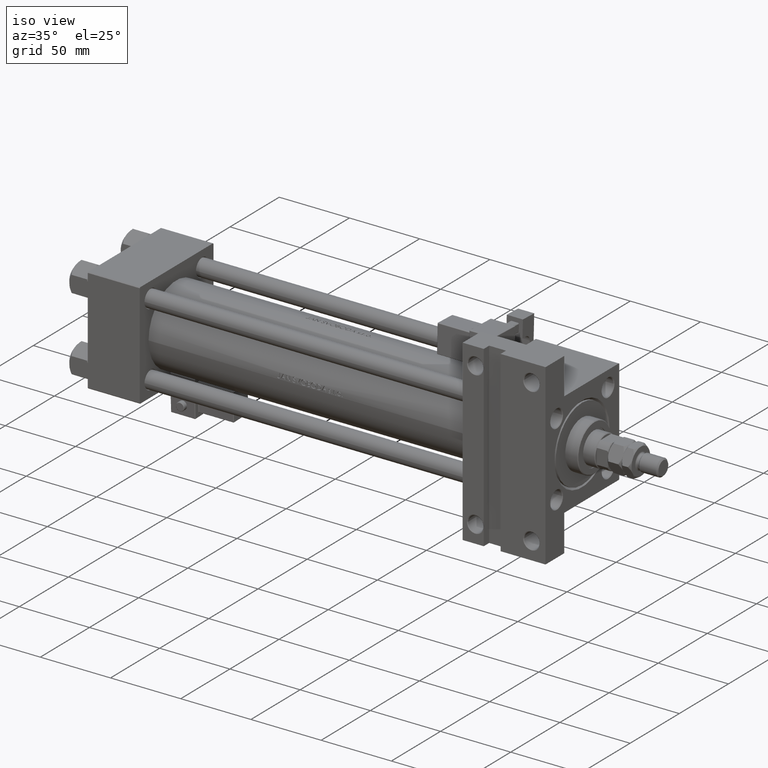
[diagram: clean part render]
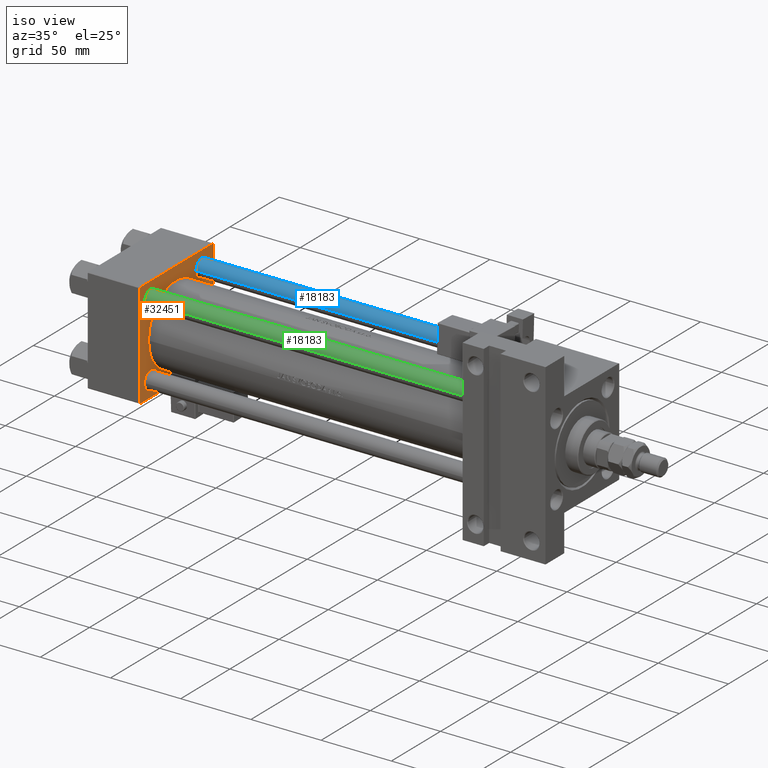
[diagram: same view with three faces highlighted in distinct colors, each labeled with its STEP entity id]
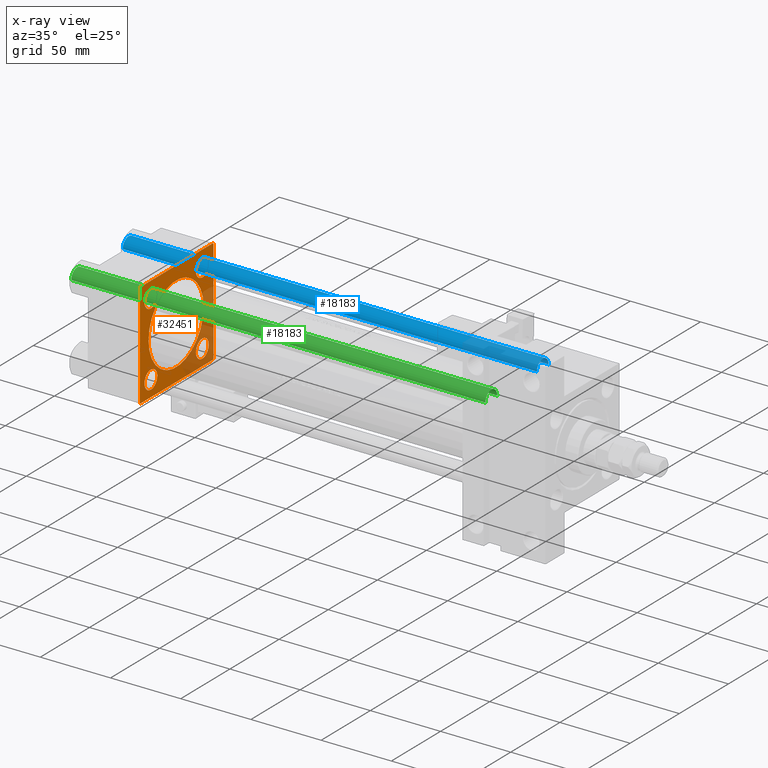
[diagram: x-ray of the same camera — body ghosted, the three highlighted faces saturated]
A machine part, iso view with three faces highlighted in distinct colors.
The next image is the same camera in x-ray (body ghosted, the three faces saturated) — at least one of them is partly hidden behind the body in this view.
Their STEP definitions:

[orange] entity #32451 — the highlighted planar face has unit normal (-1, 0, -0).
#145 = EDGE_CURVE ( 'NONE', #20750, #32262, #35883, .T. ) ;
#410 = VERTEX_POINT ( 'NONE', #51241 ) ;
#867 = CARTESIAN_POINT ( 'NONE',  ( 37.00000000000000000, -26.14999999999999147, 19.65000000000002700 ) ) ;
#1002 = ORIENTED_EDGE ( 'NONE', *, *, #6566, .T. ) ;
#1310 = ORIENTED_EDGE ( 'NONE', *, *, #45653, .T. ) ;
#2027 = EDGE_CURVE ( 'NONE', #30505, #22270, #30136, .T. ) ;
#2065 = CARTESIAN_POINT ( 'NONE',  ( 37.00000000000000000, -26.14999999999999147, -26.15000000000000924 ) ) ;
#2326 = DIRECTION ( 'NONE',  ( 0.000000000000000000, 0.000000000000000000, 1.000000000000000000 ) ) ;
#2623 = ORIENTED_EDGE ( 'NONE', *, *, #145, .T. ) ;
#4485 = EDGE_LOOP ( 'NONE', ( #38643, #10700 ) ) ;
#4826 = DIRECTION ( 'NONE',  ( 0.000000000000000000, 0.000000000000000000, 1.000000000000000000 ) ) ;
#5011 = AXIS2_PLACEMENT_3D ( 'NONE', #8722, #40414, #4826 ) ;
#5299 = DIRECTION ( 'NONE',  ( -0.000000000000000000, -0.7071067811865474617, -0.7071067811865474617 ) ) ;
#5667 = ORIENTED_EDGE ( 'NONE', *, *, #2027, .F. ) ;
#6044 = EDGE_CURVE ( 'NONE', #15151, #14868, #12775, .T. ) ;
#6566 = EDGE_CURVE ( 'NONE', #32262, #20750, #28288, .T. ) ;
#7157 = CIRCLE ( 'NONE', #44507, 6.499999999999974243 ) ;
#7484 = CARTESIAN_POINT ( 'NONE',  ( 37.00000000000000000, 37.49999999999999289, -37.50000000000000000 ) ) ;
#7563 = AXIS2_PLACEMENT_3D ( 'NONE', #45983, #34268, #2326 ) ;
#7746 = LINE ( 'NONE', #7484, #45141 ) ;
#7748 = AXIS2_PLACEMENT_3D ( 'NONE', #24556, #12880, #20909 ) ;
#7896 = VERTEX_POINT ( 'NONE', #39016 ) ;
#7900 = EDGE_LOOP ( 'NONE', ( #24109, #51052, #31374, #39454, #45185, #50677, #39709, #16910 ) ) ;
#8016 = CARTESIAN_POINT ( 'NONE',  ( 37.00000000000000000, 37.49999999999999289, 37.50000000000000000 ) ) ;
#8722 = CARTESIAN_POINT ( 'NONE',  ( 37.00000000000000000, -26.14999999999999147, 26.15000000000000924 ) ) ;
#8842 = AXIS2_PLACEMENT_3D ( 'NONE', #21752, #33964, #14227 ) ;
#8871 = EDGE_CURVE ( 'NONE', #19501, #35179, #7157, .T. ) ;
#8893 = CARTESIAN_POINT ( 'NONE',  ( 37.00000000000000000, 26.14999999999999858, -19.65000000000000213 ) ) ;
#8917 = CARTESIAN_POINT ( 'NONE',  ( 37.00000000000000000, 26.14999999999999858, -32.65000000000000568 ) ) ;
#9680 = DIRECTION ( 'NONE',  ( 0.000000000000000000, 0.000000000000000000, 1.000000000000000000 ) ) ;
#10700 = ORIENTED_EDGE ( 'NONE', *, *, #8871, .T. ) ;
#10931 = EDGE_LOOP ( 'NONE', ( #30409, #5667 ) ) ;
#11431 = ORIENTED_EDGE ( 'NONE', *, *, #46224, .T. ) ;
#11605 = AXIS2_PLACEMENT_3D ( 'NONE', #29030, #17341, #45418 ) ;
#11649 = EDGE_CURVE ( 'NONE', #22270, #30505, #24634, .T. ) ;
#11712 = FACE_OUTER_BOUND ( 'NONE', #7900, .T. ) ;
#12140 = CARTESIAN_POINT ( 'NONE',  ( 37.00000000000000000, 36.99999999999999289, 37.50000000000000000 ) ) ;
#12775 = LINE ( 'NONE', #24944, #22457 ) ;
#12807 = DIRECTION ( 'NONE',  ( 0.000000000000000000, -0.7071067811865474617, 0.7071067811865474617 ) ) ;
#12818 = EDGE_LOOP ( 'NONE', ( #2623, #1002 ) ) ;
#12880 = DIRECTION ( 'NONE',  ( 1.000000000000000000, -0.000000000000000000, 0.000000000000000000 ) ) ;
#13051 = CIRCLE ( 'NONE', #47920, 6.500000000000008882 ) ;
#13167 = VERTEX_POINT ( 'NONE', #31619 ) ;
#13303 = EDGE_CURVE ( 'NONE', #7896, #20907, #28248, .T. ) ;
#13438 = EDGE_CURVE ( 'NONE', #410, #15151, #38338, .T. ) ;
#14084 = DIRECTION ( 'NONE',  ( -1.000000000000000000, 0.000000000000000000, -0.000000000000000000 ) ) ;
#14227 = DIRECTION ( 'NONE',  ( 0.000000000000000000, 0.000000000000000000, 1.000000000000000000 ) ) ;
#14299 = VERTEX_POINT ( 'NONE', #34189 ) ;
#14453 = DIRECTION ( 'NONE',  ( 0.000000000000000000, 9.251858538542971581E-17, -1.000000000000000000 ) ) ;
#14868 = VERTEX_POINT ( 'NONE', #38984 ) ;
#15151 = VERTEX_POINT ( 'NONE', #22303 ) ;
#15219 = AXIS2_PLACEMENT_3D ( 'NONE', #39483, #23628, #15851 ) ;
#15851 = DIRECTION ( 'NONE',  ( -0.000000000000000000, 0.000000000000000000, 1.000000000000000000 ) ) ;
#16156 = CARTESIAN_POINT ( 'NONE',  ( 37.00000000000000000, -26.14999999999999147, -32.64999999999998437 ) ) ;
#16508 = CARTESIAN_POINT ( 'NONE',  ( 37.00000000000000000, -37.50000000000000711, 36.99999999999999289 ) ) ;
#16572 = CARTESIAN_POINT ( 'NONE',  ( 37.00000000000000000, 37.49999999999999289, 37.50000000000000000 ) ) ;
#16648 = DIRECTION ( 'NONE',  ( -1.000000000000000000, 0.000000000000000000, -0.000000000000000000 ) ) ;
#16897 = ORIENTED_EDGE ( 'NONE', *, *, #26831, .T. ) ;
#16900 = CARTESIAN_POINT ( 'NONE',  ( 37.00000000000000000, 26.14999999999999858, 26.15000000000000213 ) ) ;
#16910 = ORIENTED_EDGE ( 'NONE', *, *, #6044, .T. ) ;
#17341 = DIRECTION ( 'NONE',  ( -1.000000000000000000, 0.000000000000000000, -0.000000000000000000 ) ) ;
#19501 = VERTEX_POINT ( 'NONE', #51319 ) ;
#20010 = DIRECTION ( 'NONE',  ( -0.000000000000000000, 0.7071067811865474617, 0.7071067811865474617 ) ) ;
#20395 = VECTOR ( 'NONE', #51143, 1000.000000000000000 ) ;
#20692 = CARTESIAN_POINT ( 'NONE',  ( 37.00000000000000711, 3.490243377569956456E-15, -28.50000000000000000 ) ) ;
#20750 = VERTEX_POINT ( 'NONE', #8917 ) ;
#20907 = VERTEX_POINT ( 'NONE', #21608 ) ;
#20909 = DIRECTION ( 'NONE',  ( 0.000000000000000000, 0.000000000000000000, 1.000000000000000000 ) ) ;
#21151 = EDGE_CURVE ( 'NONE', #41759, #40476, #38686, .T. ) ;
#21608 = CARTESIAN_POINT ( 'NONE',  ( 37.00000000000000000, 37.49999999999999289, -36.99999999999998579 ) ) ;
#21752 = CARTESIAN_POINT ( 'NONE',  ( 37.00000000000000000, 26.14999999999999858, 26.15000000000000213 ) ) ;
#22228 = EDGE_CURVE ( 'NONE', #13167, #14299, #46204, .T. ) ;
#22270 = VERTEX_POINT ( 'NONE', #34211 ) ;
#22303 = CARTESIAN_POINT ( 'NONE',  ( 37.00000000000000000, -37.50000000000000000, -37.00000000000003553 ) ) ;
#22457 = VECTOR ( 'NONE', #40557, 1000.000000000000000 ) ;
#22866 = FACE_BOUND ( 'NONE', #10931, .T. ) ;
#23628 = DIRECTION ( 'NONE',  ( -1.000000000000000000, 0.000000000000000000, -0.000000000000000000 ) ) ;
#24109 = ORIENTED_EDGE ( 'NONE', *, *, #33426, .F. ) ;
#24361 = CARTESIAN_POINT ( 'NONE',  ( 37.00000000000000000, -37.00000000000000711, 37.49999999999999289 ) ) ;
#24556 = CARTESIAN_POINT ( 'NONE',  ( 37.00000000000000711, 6.123233995736772199E-17, -0.5000000000000004441 ) ) ;
#24634 = CIRCLE ( 'NONE', #42073, 28.00000000000000000 ) ;
#24766 = DIRECTION ( 'NONE',  ( -1.000000000000000000, 0.000000000000000000, -0.000000000000000000 ) ) ;
#24944 = CARTESIAN_POINT ( 'NONE',  ( 37.00000000000000000, -37.00000000000002132, -37.50000000000000711 ) ) ;
#25036 = DIRECTION ( 'NONE',  ( 0.000000000000000000, 0.000000000000000000, 1.000000000000000000 ) ) ;
#25627 = CARTESIAN_POINT ( 'NONE',  ( 37.00000000000000000, -37.50000000000000711, 37.49999999999999289 ) ) ;
#25753 = CARTESIAN_POINT ( 'NONE',  ( 37.00000000000000000, -26.14999999999999147, -26.15000000000000924 ) ) ;
#26529 = VECTOR ( 'NONE', #12807, 1000.000000000000114 ) ;
#26831 = EDGE_CURVE ( 'NONE', #14299, #13167, #13051, .T. ) ;
#28000 = DIRECTION ( 'NONE',  ( 0.000000000000000000, -1.000000000000000000, -9.251858538542972814E-17 ) ) ;
#28248 = LINE ( 'NONE', #16572, #30379 ) ;
#28288 = CIRCLE ( 'NONE', #7563, 6.500000000000002665 ) ;
#28402 = CARTESIAN_POINT ( 'NONE',  ( 37.00000000000000000, 26.14999999999999858, -26.15000000000000213 ) ) ;
#29030 = CARTESIAN_POINT ( 'NONE',  ( 37.00000000000000000, -26.14999999999999147, 26.15000000000000924 ) ) ;
#29614 = DIRECTION ( 'NONE',  ( -1.000000000000000000, 0.000000000000000000, -0.000000000000000000 ) ) ;
#29938 = VERTEX_POINT ( 'NONE', #867 ) ;
#30136 = CIRCLE ( 'NONE', #7748, 28.00000000000000000 ) ;
#30379 = VECTOR ( 'NONE', #48781, 1000.000000000000000 ) ;
#30409 = ORIENTED_EDGE ( 'NONE', *, *, #11649, .F. ) ;
#30505 = VERTEX_POINT ( 'NONE', #20692 ) ;
#31374 = ORIENTED_EDGE ( 'NONE', *, *, #13303, .F. ) ;
#31619 = CARTESIAN_POINT ( 'NONE',  ( 37.00000000000000000, 26.14999999999999858, 19.64999999999999858 ) ) ;
#31860 = VECTOR ( 'NONE', #20010, 1000.000000000000114 ) ;
#32262 = VERTEX_POINT ( 'NONE', #8893 ) ;
#32451 = ADVANCED_FACE ( 'NONE', ( #39231, #43910, #47300, #50671, #22866, #11712 ), #43382, .F. ) ;
#32776 = CARTESIAN_POINT ( 'NONE',  ( 37.00000000000000000, 36.99999999999999289, 37.50000000000000000 ) ) ;
#32834 = DIRECTION ( 'NONE',  ( 1.000000000000000000, -0.000000000000000000, 0.000000000000000000 ) ) ;
#33426 = EDGE_CURVE ( 'NONE', #41305, #14868, #7746, .T. ) ;
#33964 = DIRECTION ( 'NONE',  ( -1.000000000000000000, 0.000000000000000000, -0.000000000000000000 ) ) ;
#33991 = EDGE_CURVE ( 'NONE', #41305, #20907, #35081, .T. ) ;
#34189 = CARTESIAN_POINT ( 'NONE',  ( 37.00000000000000000, 26.14999999999999858, 32.65000000000001279 ) ) ;
#34211 = CARTESIAN_POINT ( 'NONE',  ( 37.00000000000000711, 6.123233995736772199E-17, 27.50000000000000000 ) ) ;
#34268 = DIRECTION ( 'NONE',  ( -1.000000000000000000, 0.000000000000000000, -0.000000000000000000 ) ) ;
#35037 = CARTESIAN_POINT ( 'NONE',  ( 37.00000000000000000, 36.99999999999997868, -37.50000000000000000 ) ) ;
#35064 = AXIS2_PLACEMENT_3D ( 'NONE', #28402, #24766, #44273 ) ;
#35081 = LINE ( 'NONE', #44179, #31860 ) ;
#35179 = VERTEX_POINT ( 'NONE', #16156 ) ;
#35883 = CIRCLE ( 'NONE', #35064, 6.500000000000002665 ) ;
#35912 = EDGE_LOOP ( 'NONE', ( #1310, #11431 ) ) ;
#35972 = VERTEX_POINT ( 'NONE', #41117 ) ;
#36539 = CIRCLE ( 'NONE', #5011, 6.499999999999981348 ) ;
#36671 = LINE ( 'NONE', #32776, #26529 ) ;
#36726 = LINE ( 'NONE', #16508, #51222 ) ;
#36730 = CARTESIAN_POINT ( 'NONE',  ( 37.00000000000000711, 6.123233995736772199E-17, -0.5000000000000004441 ) ) ;
#38338 = LINE ( 'NONE', #25627, #46174 ) ;
#38643 = ORIENTED_EDGE ( 'NONE', *, *, #45696, .T. ) ;
#38686 = LINE ( 'NONE', #8016, #20395 ) ;
#38984 = CARTESIAN_POINT ( 'NONE',  ( 37.00000000000000000, -37.00000000000002132, -37.50000000000000711 ) ) ;
#38996 = AXIS2_PLACEMENT_3D ( 'NONE', #2065, #29614, #45488 ) ;
#39016 = CARTESIAN_POINT ( 'NONE',  ( 37.00000000000000000, 37.49999999999999289, 37.00000000000000000 ) ) ;
#39231 = FACE_BOUND ( 'NONE', #4485, .T. ) ;
#39454 = ORIENTED_EDGE ( 'NONE', *, *, #45046, .T. ) ;
#39483 = CARTESIAN_POINT ( 'NONE',  ( 37.00000000000000000, 0.000000000000000000, 0.000000000000000000 ) ) ;
#39664 = EDGE_CURVE ( 'NONE', #40476, #410, #36726, .T. ) ;
#39709 = ORIENTED_EDGE ( 'NONE', *, *, #13438, .T. ) ;
#39809 = CIRCLE ( 'NONE', #38996, 6.499999999999974243 ) ;
#40414 = DIRECTION ( 'NONE',  ( -1.000000000000000000, 0.000000000000000000, -0.000000000000000000 ) ) ;
#40476 = VERTEX_POINT ( 'NONE', #24361 ) ;
#40557 = DIRECTION ( 'NONE',  ( 0.000000000000000000, 0.7071067811865524577, -0.7071067811865426878 ) ) ;
#41117 = CARTESIAN_POINT ( 'NONE',  ( 37.00000000000000000, -26.14999999999999147, 32.64999999999999147 ) ) ;
#41305 = VERTEX_POINT ( 'NONE', #35037 ) ;
#41759 = VERTEX_POINT ( 'NONE', #12140 ) ;
#42073 = AXIS2_PLACEMENT_3D ( 'NONE', #36730, #32834, #25036 ) ;
#43152 = CIRCLE ( 'NONE', #11605, 6.499999999999981348 ) ;
#43382 = PLANE ( 'NONE',  #15219 ) ;
#43910 = FACE_BOUND ( 'NONE', #12818, .T. ) ;
#44179 = CARTESIAN_POINT ( 'NONE',  ( 37.00000000000000000, 37.49999999999999289, -36.99999999999998579 ) ) ;
#44273 = DIRECTION ( 'NONE',  ( 0.000000000000000000, 0.000000000000000000, 1.000000000000000000 ) ) ;
#44507 = AXIS2_PLACEMENT_3D ( 'NONE', #25753, #14084, #9680 ) ;
#45046 = EDGE_CURVE ( 'NONE', #7896, #41759, #36671, .T. ) ;
#45141 = VECTOR ( 'NONE', #28000, 1000.000000000000000 ) ;
#45185 = ORIENTED_EDGE ( 'NONE', *, *, #21151, .T. ) ;
#45418 = DIRECTION ( 'NONE',  ( 0.000000000000000000, 0.000000000000000000, 1.000000000000000000 ) ) ;
#45488 = DIRECTION ( 'NONE',  ( 0.000000000000000000, 0.000000000000000000, 1.000000000000000000 ) ) ;
#45489 = DIRECTION ( 'NONE',  ( 0.000000000000000000, 0.000000000000000000, 1.000000000000000000 ) ) ;
#45653 = EDGE_CURVE ( 'NONE', #29938, #35972, #43152, .T. ) ;
#45696 = EDGE_CURVE ( 'NONE', #35179, #19501, #39809, .T. ) ;
#45983 = CARTESIAN_POINT ( 'NONE',  ( 37.00000000000000000, 26.14999999999999858, -26.15000000000000213 ) ) ;
#46174 = VECTOR ( 'NONE', #14453, 1000.000000000000000 ) ;
#46204 = CIRCLE ( 'NONE', #8842, 6.500000000000008882 ) ;
#46224 = EDGE_CURVE ( 'NONE', #35972, #29938, #36539, .T. ) ;
#47184 = EDGE_LOOP ( 'NONE', ( #50204, #16897 ) ) ;
#47300 = FACE_BOUND ( 'NONE', #35912, .T. ) ;
#47920 = AXIS2_PLACEMENT_3D ( 'NONE', #16900, #16648, #45489 ) ;
#48781 = DIRECTION ( 'NONE',  ( 0.000000000000000000, 0.000000000000000000, -1.000000000000000000 ) ) ;
#50204 = ORIENTED_EDGE ( 'NONE', *, *, #22228, .T. ) ;
#50671 = FACE_BOUND ( 'NONE', #47184, .T. ) ;
#50677 = ORIENTED_EDGE ( 'NONE', *, *, #39664, .T. ) ;
#51052 = ORIENTED_EDGE ( 'NONE', *, *, #33991, .T. ) ;
#51143 = DIRECTION ( 'NONE',  ( 0.000000000000000000, -1.000000000000000000, -9.251858538542971581E-17 ) ) ;
#51222 = VECTOR ( 'NONE', #5299, 1000.000000000000114 ) ;
#51241 = CARTESIAN_POINT ( 'NONE',  ( 37.00000000000000000, -37.50000000000000711, 36.99999999999999289 ) ) ;
#51319 = CARTESIAN_POINT ( 'NONE',  ( 37.00000000000000000, -26.14999999999999147, -19.65000000000003411 ) ) ;

[blue] entity #18183 — the highlighted cylindrical surface (edge-blend (fillet) strip) has radius 6 mm, axis along (1, -0, 0).
#5163 = CARTESIAN_POINT ( 'NONE',  ( 6.000000000000000888, 7.347880794884120722E-16, 295.4999999999999432 ) ) ;
#6320 = AXIS2_PLACEMENT_3D ( 'NONE', #10368, #38668, #14777 ) ;
#6553 = EDGE_CURVE ( 'NONE', #50585, #50276, #34918, .T. ) ;
#7087 = VECTOR ( 'NONE', #28251, 1000.000000000000000 ) ;
#10368 = CARTESIAN_POINT ( 'NONE',  ( 0.000000000000000000, 0.000000000000000000, 295.4999999999999432 ) ) ;
#12932 = ORIENTED_EDGE ( 'NONE', *, *, #44148, .T. ) ;
#13040 = EDGE_CURVE ( 'NONE', #50253, #22755, #43674, .T. ) ;
#13487 = AXIS2_PLACEMENT_3D ( 'NONE', #39477, #48318, #20757 ) ;
#14777 = DIRECTION ( 'NONE',  ( 1.000000000000000000, 0.000000000000000000, 0.000000000000000000 ) ) ;
#18183 = ADVANCED_FACE ( 'NONE', ( #32192 ), #32435, .T. ) ;
#18421 = DIRECTION ( 'NONE',  ( -0.000000000000000000, -0.000000000000000000, 1.000000000000000000 ) ) ;
#19173 = DIRECTION ( 'NONE',  ( 1.000000000000000000, 0.000000000000000000, 0.000000000000000000 ) ) ;
#20049 = EDGE_CURVE ( 'NONE', #50253, #50276, #39695, .T. ) ;
#20757 = DIRECTION ( 'NONE',  ( -1.000000000000000000, 0.000000000000000000, 0.000000000000000000 ) ) ;
#22755 = VERTEX_POINT ( 'NONE', #39330 ) ;
#25786 = AXIS2_PLACEMENT_3D ( 'NONE', #35021, #18421, #19173 ) ;
#28251 = DIRECTION ( 'NONE',  ( -0.000000000000000000, -0.000000000000000000, -1.000000000000000000 ) ) ;
#28403 = EDGE_LOOP ( 'NONE', ( #51370, #36365, #12932, #39368 ) ) ;
#28495 = CARTESIAN_POINT ( 'NONE',  ( 6.000000000000000888, 7.347880794884120722E-16, 296.0000000000000000 ) ) ;
#31855 = CARTESIAN_POINT ( 'NONE',  ( -6.000000000000000888, 0.000000000000000000, 0.4999999999999449329 ) ) ;
#32192 = FACE_OUTER_BOUND ( 'NONE', #28403, .T. ) ;
#32435 = CYLINDRICAL_SURFACE ( 'NONE', #13487, 6.000000000000000888 ) ;
#33045 = DIRECTION ( 'NONE',  ( -0.000000000000000000, -0.000000000000000000, -1.000000000000000000 ) ) ;
#33130 = VECTOR ( 'NONE', #33045, 1000.000000000000000 ) ;
#34887 = CARTESIAN_POINT ( 'NONE',  ( -6.000000000000000888, 0.000000000000000000, 296.0000000000000000 ) ) ;
#34918 = CIRCLE ( 'NONE', #25786, 6.000000000000000888 ) ;
#35021 = CARTESIAN_POINT ( 'NONE',  ( 0.000000000000000000, 0.000000000000000000, 0.4999999999999449329 ) ) ;
#36365 = ORIENTED_EDGE ( 'NONE', *, *, #13040, .T. ) ;
#38668 = DIRECTION ( 'NONE',  ( 0.000000000000000000, 0.000000000000000000, -1.000000000000000000 ) ) ;
#39330 = CARTESIAN_POINT ( 'NONE',  ( -6.000000000000000888, 0.000000000000000000, 295.4999999999999432 ) ) ;
#39368 = ORIENTED_EDGE ( 'NONE', *, *, #6553, .T. ) ;
#39477 = CARTESIAN_POINT ( 'NONE',  ( 0.000000000000000000, 0.000000000000000000, 296.0000000000000000 ) ) ;
#39695 = LINE ( 'NONE', #28495, #7087 ) ;
#43674 = CIRCLE ( 'NONE', #6320, 6.000000000000000888 ) ;
#44148 = EDGE_CURVE ( 'NONE', #22755, #50585, #50502, .T. ) ;
#48318 = DIRECTION ( 'NONE',  ( -0.000000000000000000, -0.000000000000000000, -1.000000000000000000 ) ) ;
#49075 = CARTESIAN_POINT ( 'NONE',  ( 6.000000000000000888, 7.347880794884120722E-16, 0.4999999999999449329 ) ) ;
#50253 = VERTEX_POINT ( 'NONE', #5163 ) ;
#50276 = VERTEX_POINT ( 'NONE', #49075 ) ;
#50502 = LINE ( 'NONE', #34887, #33130 ) ;
#50585 = VERTEX_POINT ( 'NONE', #31855 ) ;
#51370 = ORIENTED_EDGE ( 'NONE', *, *, #20049, .F. ) ;

[green] entity #18183 — the highlighted cylindrical surface (edge-blend (fillet) strip) has radius 6 mm, axis along (-1, 0, 0).
#5163 = CARTESIAN_POINT ( 'NONE',  ( 6.000000000000000888, 7.347880794884120722E-16, 295.4999999999999432 ) ) ;
#6320 = AXIS2_PLACEMENT_3D ( 'NONE', #10368, #38668, #14777 ) ;
#6553 = EDGE_CURVE ( 'NONE', #50585, #50276, #34918, .T. ) ;
#7087 = VECTOR ( 'NONE', #28251, 1000.000000000000000 ) ;
#10368 = CARTESIAN_POINT ( 'NONE',  ( 0.000000000000000000, 0.000000000000000000, 295.4999999999999432 ) ) ;
#12932 = ORIENTED_EDGE ( 'NONE', *, *, #44148, .T. ) ;
#13040 = EDGE_CURVE ( 'NONE', #50253, #22755, #43674, .T. ) ;
#13487 = AXIS2_PLACEMENT_3D ( 'NONE', #39477, #48318, #20757 ) ;
#14777 = DIRECTION ( 'NONE',  ( 1.000000000000000000, 0.000000000000000000, 0.000000000000000000 ) ) ;
#18183 = ADVANCED_FACE ( 'NONE', ( #32192 ), #32435, .T. ) ;
#18421 = DIRECTION ( 'NONE',  ( -0.000000000000000000, -0.000000000000000000, 1.000000000000000000 ) ) ;
#19173 = DIRECTION ( 'NONE',  ( 1.000000000000000000, 0.000000000000000000, 0.000000000000000000 ) ) ;
#20049 = EDGE_CURVE ( 'NONE', #50253, #50276, #39695, .T. ) ;
#20757 = DIRECTION ( 'NONE',  ( -1.000000000000000000, 0.000000000000000000, 0.000000000000000000 ) ) ;
#22755 = VERTEX_POINT ( 'NONE', #39330 ) ;
#25786 = AXIS2_PLACEMENT_3D ( 'NONE', #35021, #18421, #19173 ) ;
#28251 = DIRECTION ( 'NONE',  ( -0.000000000000000000, -0.000000000000000000, -1.000000000000000000 ) ) ;
#28403 = EDGE_LOOP ( 'NONE', ( #51370, #36365, #12932, #39368 ) ) ;
#28495 = CARTESIAN_POINT ( 'NONE',  ( 6.000000000000000888, 7.347880794884120722E-16, 296.0000000000000000 ) ) ;
#31855 = CARTESIAN_POINT ( 'NONE',  ( -6.000000000000000888, 0.000000000000000000, 0.4999999999999449329 ) ) ;
#32192 = FACE_OUTER_BOUND ( 'NONE', #28403, .T. ) ;
#32435 = CYLINDRICAL_SURFACE ( 'NONE', #13487, 6.000000000000000888 ) ;
#33045 = DIRECTION ( 'NONE',  ( -0.000000000000000000, -0.000000000000000000, -1.000000000000000000 ) ) ;
#33130 = VECTOR ( 'NONE', #33045, 1000.000000000000000 ) ;
#34887 = CARTESIAN_POINT ( 'NONE',  ( -6.000000000000000888, 0.000000000000000000, 296.0000000000000000 ) ) ;
#34918 = CIRCLE ( 'NONE', #25786, 6.000000000000000888 ) ;
#35021 = CARTESIAN_POINT ( 'NONE',  ( 0.000000000000000000, 0.000000000000000000, 0.4999999999999449329 ) ) ;
#36365 = ORIENTED_EDGE ( 'NONE', *, *, #13040, .T. ) ;
#38668 = DIRECTION ( 'NONE',  ( 0.000000000000000000, 0.000000000000000000, -1.000000000000000000 ) ) ;
#39330 = CARTESIAN_POINT ( 'NONE',  ( -6.000000000000000888, 0.000000000000000000, 295.4999999999999432 ) ) ;
#39368 = ORIENTED_EDGE ( 'NONE', *, *, #6553, .T. ) ;
#39477 = CARTESIAN_POINT ( 'NONE',  ( 0.000000000000000000, 0.000000000000000000, 296.0000000000000000 ) ) ;
#39695 = LINE ( 'NONE', #28495, #7087 ) ;
#43674 = CIRCLE ( 'NONE', #6320, 6.000000000000000888 ) ;
#44148 = EDGE_CURVE ( 'NONE', #22755, #50585, #50502, .T. ) ;
#48318 = DIRECTION ( 'NONE',  ( -0.000000000000000000, -0.000000000000000000, -1.000000000000000000 ) ) ;
#49075 = CARTESIAN_POINT ( 'NONE',  ( 6.000000000000000888, 7.347880794884120722E-16, 0.4999999999999449329 ) ) ;
#50253 = VERTEX_POINT ( 'NONE', #5163 ) ;
#50276 = VERTEX_POINT ( 'NONE', #49075 ) ;
#50502 = LINE ( 'NONE', #34887, #33130 ) ;
#50585 = VERTEX_POINT ( 'NONE', #31855 ) ;
#51370 = ORIENTED_EDGE ( 'NONE', *, *, #20049, .F. ) ;